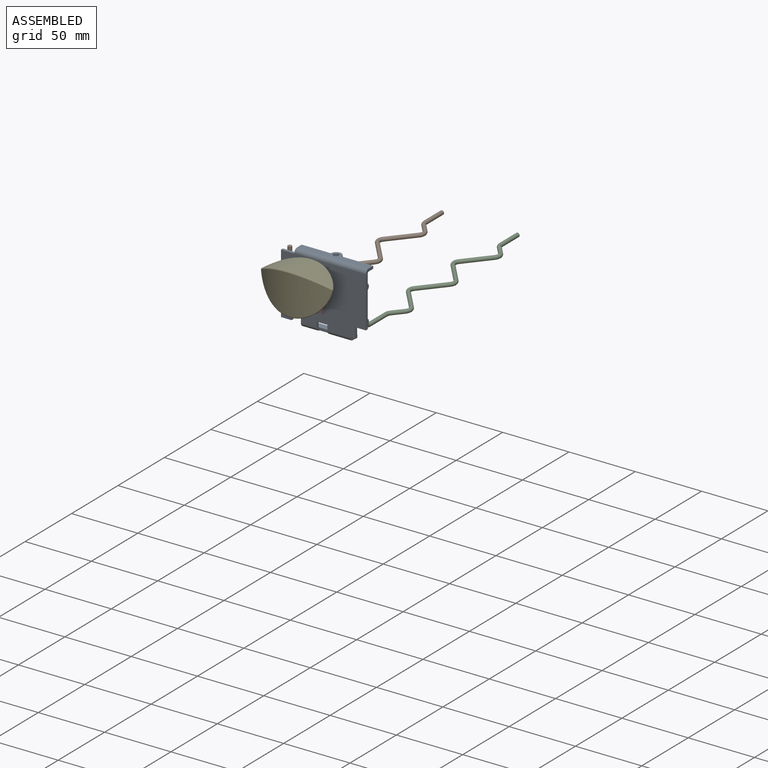
[diagram: assembled view]
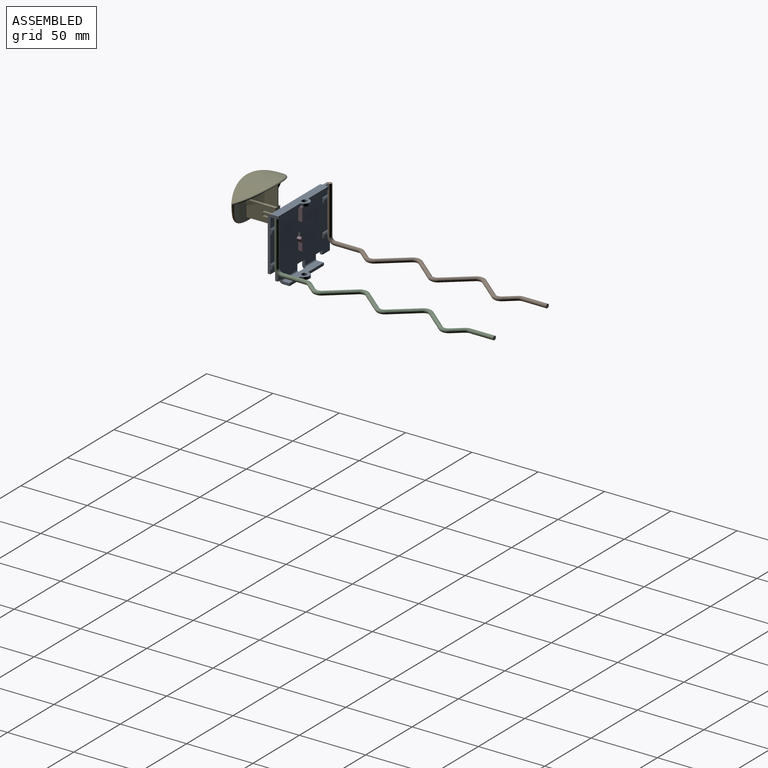
[diagram: assembled view, second angle]
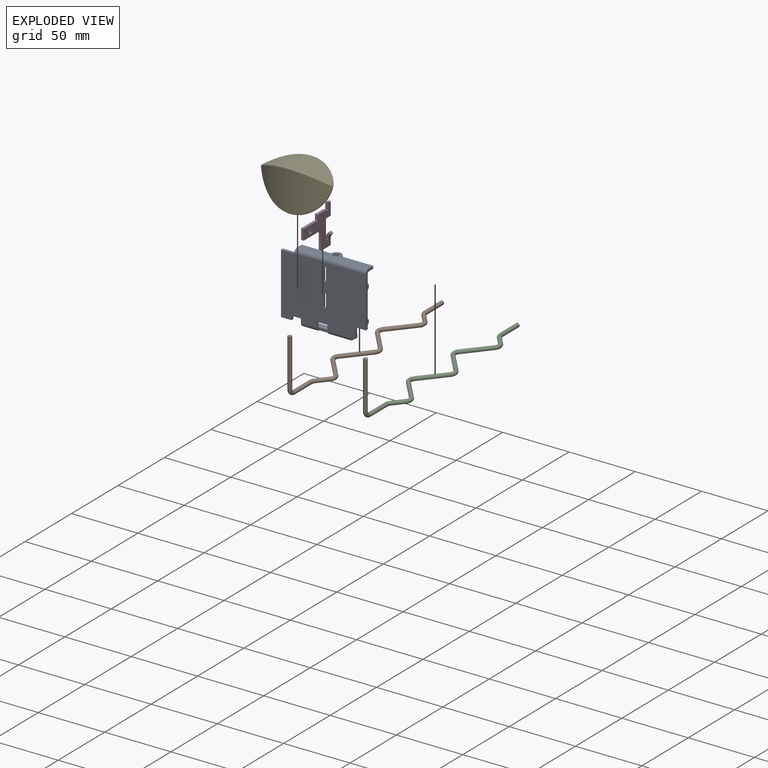
[diagram: exploded view]
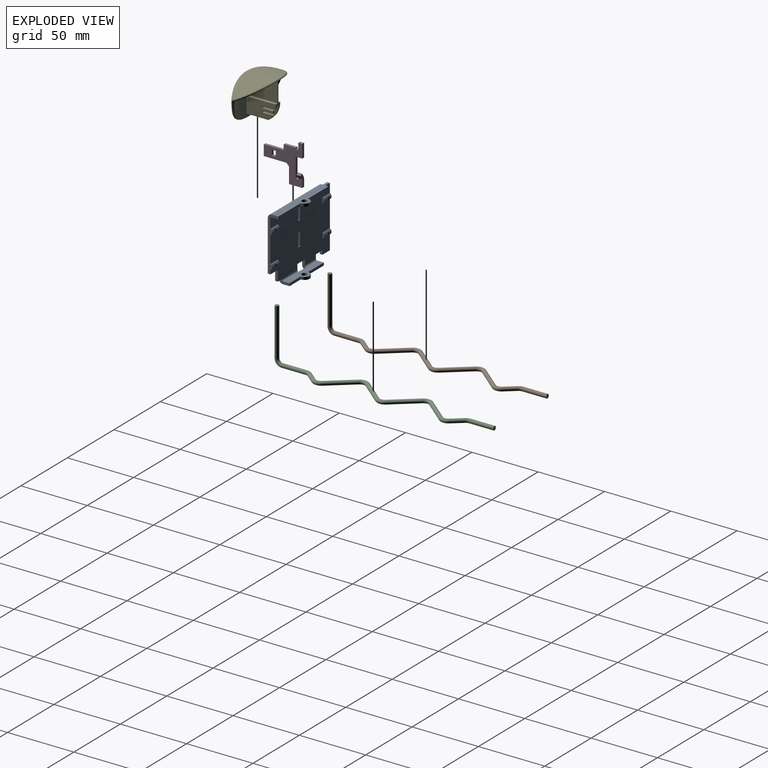
[diagram: exploded view, second angle]
ASSEMBLY  parts=5 mates=4
PART A: 56 faces, bbox 64x12x52 mm
  f0: cylinder r=3mm len=17mm, axis (-1,0,0), area 80.1mm2, adj f5,f7,f24,f29
  f1: cylinder r=1mm len=17mm, axis (-1,0,0), area 26.7mm2, adj f8,f10,f24,f29
  f2: plane 46x3.3mm, normal (-1,0,0), area 99.7mm2, adj f5,f10,f19,f26,f44,f46
  f3: plane 41x8mm, normal (1,0,0), area 100mm2, adj f4,f5,f10,f11,f12,f13,f18,f32
  f4: cylinder r=3mm len=54mm, axis (-1,0,0), area 254.5mm2, adj f3,f5,f13,f17
  f5: plane 64x46mm, normal (0,-1,0), area 2787mm2, adj f0,f2,f3,f4,f6,f19,f25,f26
  f6: cylinder r=3mm len=12mm, axis (-1,0,0), area 56.5mm2, adj f5,f7,f25,f30
  f7: plane 37x9mm, normal (0,0,-1), area 197.6mm2, adj f0,f6,f20,f21,f22,f23,f24,f25
  f8: plane 37x9mm, normal (0,0,1), area 197.6mm2, adj f1,f9,f20,f21,f22,f23,f24,f25
  f9: cylinder r=1mm len=12mm, axis (-1,0,0), area 18.8mm2, adj f8,f10,f25,f30
  f10: plane 64x46mm, normal (0,1,0), area 2654.4mm2, adj f1,f2,f3,f9,f11,f19,f25,f26
  f11: cylinder r=1mm len=54mm, axis (-1,0,0), area 84.8mm2, adj f3,f10,f12,f17
  f12: plane 54x9mm, normal (0,0,-1), area 282.6mm2, adj f3,f11,f14,f15,f16,f17,f18
  f13: plane 54x9mm, normal (0,0,1), area 282.6mm2, adj f3,f4,f14,f15,f16,f17,f18
  f14: cylinder r=2mm len=4mm, axis (0,0,1), area 25.1mm2, adj f12,f13
  f15: cylinder r=4mm len=8mm, axis (0,0,1), area 25.1mm2, adj f12,f13,f16,f18
  f16: plane 22x2mm, normal (0,1,0), area 44mm2, adj f12,f13,f15,f17
  f17: plane 8x3mm, normal (-1,0,0), area 16.3mm2, adj f4,f11,f12,f13,f16,f19
  f18: plane 24x2mm, normal (0,1,0), area 48mm2, adj f3,f12,f13,f15
  f19: plane 10x2mm, normal (0,0,1), area 20mm2, adj f2,f5,f10,f17
  f20: cylinder r=2mm len=4mm, axis (0,0,-1), area 25.1mm2, adj f7,f8
  f21: cylinder r=4mm len=8mm, axis (0,0,-1), area 25.1mm2, adj f7,f8,f22,f23
  f22: plane 12x2mm, normal (0,1,0), area 24mm2, adj f7,f8,f21,f24
  f23: plane 17x2mm, normal (0,1,0), area 34mm2, adj f7,f8,f21,f25
  f24: plane 8x3mm, normal (1,0,0), area 16.3mm2, adj f0,f1,f7,f8,f22,f27
  f25: plane 8x6mm, normal (-1,0,0), area 22.3mm2, adj f5,f6,f7,f8,f9,f10,f23,f34
  f26: plane 8x2mm, normal (0,0,-1), area 16mm2, adj f2,f5,f10,f35
  f27: plane 4x2mm, normal (0,0,-1), area 8mm2, adj f5,f10,f24,f33
  f28: plane 8x2mm, normal (0,-1,0), area 16mm2, adj f7,f8,f29,f30
  f29: plane 7x3mm, normal (-1,0,0), area 14.3mm2, adj f0,f1,f5,f10,f28,f31
  f30: plane 7x3mm, normal (1,0,0), area 14.3mm2, adj f5,f6,f9,f10,f28,f31
  f31: plane 8x2mm, normal (0,0,-1), area 16mm2, adj f5,f10,f29,f30
  f32: plane 8x2mm, normal (0,0,-1), area 16mm2, adj f3,f5,f10,f33
  f33: plane 8x2mm, normal (1,0,0), area 16mm2, adj f5,f10,f27,f32
  f34: plane 7x2mm, normal (0,0,-1), area 14mm2, adj f5,f10,f25,f35
  f35: plane 3x2mm, normal (1,0,0), area 6mm2, adj f5,f10,f26,f34
  f36: plane 10x2mm, normal (-1,0,0), area 20mm2, adj f5,f10,f37,f39
  f37: plane 2x2mm, normal (0,0,1), area 4mm2, adj f5,f10,f36,f38
  f38: plane 10x2mm, normal (1,0,0), area 20mm2, adj f5,f10,f37,f39
  f39: plane 2x2mm, normal (0,0,-1), area 4mm2, adj f5,f10,f36,f38
  f40: plane 10x2mm, normal (-1,0,0), area 20mm2, adj f5,f10,f41,f43
  f41: plane 2x2mm, normal (0,0,1), area 4mm2, adj f5,f10,f40,f42
  f42: plane 10x2mm, normal (1,0,0), area 20mm2, adj f5,f10,f41,f43
  f43: plane 2x2mm, normal (0,0,-1), area 4mm2, adj f5,f10,f40,f42
  f44: cylinder r=2.3mm len=8mm, axis (-1,0,0), area 37.9mm2, adj f2,f10,f45,f53
  f45: plane 4.14x1.3mm, normal (1,0,0), area 3.9mm2, adj f10,f44
  f46: cylinder r=2.3mm len=8mm, axis (-1,0,0), area 37.9mm2, adj f2,f10,f47,f52
  f47: plane 4.14x1.3mm, normal (1,0,0), area 3.9mm2, adj f10,f46
  f48: cylinder r=2.3mm len=8mm, axis (1,0,0), area 37.9mm2, adj f3,f10,f49,f55
  f49: plane 4.14x1.3mm, normal (-1,0,0), area 3.9mm2, adj f10,f48
  f50: cylinder r=2.3mm len=8mm, axis (1,0,0), area 37.9mm2, adj f3,f10,f51,f54
  f51: plane 4.14x1.3mm, normal (-1,0,0), area 3.9mm2, adj f10,f50
  f52: cylinder r=1.5mm len=2.27mm, axis (0,0,-1), area 3.5mm2, adj f46
  f53: cylinder r=1.5mm len=2.27mm, axis (0,0,-1), area 3.5mm2, adj f44
  f54: cylinder r=1.5mm len=2.27mm, axis (0,0,-1), area 3.5mm2, adj f50
  f55: cylinder r=1.5mm len=2.27mm, axis (0,0,-1), area 3.5mm2, adj f48
PART B: 19 faces, bbox 166x21.1x42 mm
  f0: plane 3x3mm, normal (-1,0,0), area 7.1mm2, adj f15
  f1: cylinder r=1.5mm len=18.19mm, axis (-1,0,0), area 171.4mm2, adj f2,f17
  f2: torus R=5mm, axis (0,0,-1), area 32.7mm2, adj f1,f3
  f3: cylinder r=1.5mm len=9.33mm, axis (-0.77,0.64,0), area 90.9mm2, adj f2,f4
  f4: torus R=5mm, axis (0,0,1), area 65.5mm2, adj f3,f5
  f5: cylinder r=1.5mm len=19.52mm, axis (-0.77,-0.64,0), area 215.9mm2, adj f4,f6
  f6: torus R=5mm, axis (0,0,-1), area 65.5mm2, adj f5,f7
  f7: cylinder r=1.5mm len=19.52mm, axis (-0.77,0.64,0), area 215.9mm2, adj f6,f8
  f8: torus R=5mm, axis (0,0,1), area 65.5mm2, adj f7,f9
  f9: cylinder r=1.5mm len=19.52mm, axis (-0.77,-0.64,0), area 215.9mm2, adj f8,f10
  f10: torus R=5mm, axis (0,0,-1), area 65.5mm2, adj f9,f11
  f11: cylinder r=1.5mm len=19.52mm, axis (-0.77,0.64,0), area 215.9mm2, adj f10,f12
  f12: torus R=5mm, axis (0,0,1), area 65.5mm2, adj f11,f13
  f13: cylinder r=1.5mm len=9.33mm, axis (-0.77,-0.64,0), area 90.9mm2, adj f12,f14
  f14: torus R=5mm, axis (0,0,-1), area 32.7mm2, adj f13,f15
  f15: cylinder r=1.5mm len=18.19mm, axis (-1,0,0), area 171.4mm2, adj f0,f14
  f16: plane 3x3mm, normal (0,0,1), area 7.1mm2, adj f18
  f17: torus R=4mm, axis (0,-1,0), area 59.2mm2, adj f1,f18
  f18: cylinder r=1.5mm len=36mm, axis (0,0,1), area 339.3mm2, adj f16,f17
PART C: same geometry as B
PART D: 33 faces, bbox 29x3.9x30 mm
  f0: plane 2x0.28mm, normal (-1,0,0), area 0.5mm2, adj f1,f22,f23,f29
  f1: plane 2x2mm, normal (0,0,1), area 4mm2, adj f0,f2,f22,f23
  f2: plane 15x2mm, normal (1,0,0), area 30mm2, adj f1,f3,f22,f23
  f3: plane 5x2mm, normal (0,0,-1), area 10mm2, adj f2,f4,f22,f23
  f4: plane 10x2mm, normal (1,0,0), area 20mm2, adj f3,f5,f22,f23
  f5: plane 3x2mm, normal (0,0,1), area 6mm2, adj f4,f6,f22,f23
  f6: plane 5x2mm, normal (-1,0,0), area 10mm2, adj f5,f7,f22,f23
  f7: plane 2x2mm, normal (0,0,1), area 4mm2, adj f6,f8,f22,f23
  f8: plane 2x1mm, normal (1,0,0), area 2mm2, adj f7,f9,f22,f23
  f9: plane 9x2mm, normal (0,0,1), area 18mm2, adj f8,f10,f22,f23
  f10: plane 4x2mm, normal (-1,0,0), area 8mm2, adj f9,f11,f22,f23
  f11: plane 15x2mm, normal (0,0,1), area 30mm2, adj f10,f12,f22,f23
  f12: plane 8x2mm, normal (-1,0,0), area 16mm2, adj f11,f13,f22,f23
  f13: plane 17x2mm, normal (0,0,-1), area 34mm2, adj f12,f14,f22,f23
  f14: plane 2x2mm, normal (-0.71,0,-0.71), area 5.7mm2, adj f13,f15,f22,f23
  f15: plane 12x2mm, normal (-1,0,0), area 24mm2, adj f14,f16,f22,f23
  f16: plane 10x2mm, normal (0,0,-1), area 20mm2, adj f15,f21,f22,f23
  f17: plane 4x2mm, normal (-1,0,0), area 8mm2, adj f18,f20,f22,f23
  f18: plane 3x2mm, normal (0,0,1), area 6mm2, adj f17,f19,f22,f23
  f19: plane 4x2mm, normal (1,0,0), area 8mm2, adj f18,f20,f22,f23
  f20: plane 3x2mm, normal (0,0,-1), area 6mm2, adj f17,f19,f22,f23
  f21: plane 5.28x2mm, normal (1,0,0), area 10.5mm2, adj f16,f22,f23,f30
  f22: plane 30x29mm, normal (0,-1,0), area 353.8mm2, adj f0,f1,f2,f3,f4,f5,f6,f7
  f23: plane 30x29mm, normal (0,1,0), area 353.8mm2, adj f0,f1,f2,f3,f4,f5,f6,f7
  f24: plane 3x1.64mm, normal (0,-0.57,0.82), area 6mm2, adj f25,f26,f27,f28
  f25: plane 3.31x3.16mm, normal (-1,0,0), area 5.3mm2, adj f24,f27,f28,f29
  f26: plane 3.31x3.16mm, normal (1,0,0), area 5.3mm2, adj f24,f27,f28,f30
  f27: plane 3x2.17mm, normal (0,-0.82,-0.57), area 7.9mm2, adj f24,f25,f26,f32
  f28: plane 3x2.17mm, normal (0,0.82,0.57), area 7.9mm2, adj f24,f25,f26,f31
  f29: plane 2.47x2.42mm, normal (-1,0,0), area 4mm2, adj f0,f25,f31,f32
  f30: plane 2.47x2.42mm, normal (1,0,0), area 4mm2, adj f21,f26,f31,f32
  f31: cylinder r=4.3mm len=3mm, axis (-1,0,0), area 7.9mm2, adj f23,f28,f29,f30
  f32: cylinder r=2.3mm len=3mm, axis (-1,0,0), area 4.2mm2, adj f22,f27,f29,f30
PART E: 44 faces, bbox 60.3x31.5x32.1 mm
  f0: plane 21.86x8mm, normal (-1,0,0), area 141.8mm2, adj f31,f32,f34,f35,f36,f37,f38,f40
  f1: plane 21.94x12mm, normal (1,0,0), area 224.2mm2, adj f2,f4,f25,f31,f36,f37,f38,f39
  f2: plane 16.58x5mm, normal (0,0,-1), area 82.8mm2, adj f1,f4,f28,f31
  f3: plane 15.01x1.01mm, normal (0,1,0), area 15mm2, adj f15,f26,f29,f30,f31
  f4: cylinder r=51.27mm len=52.83mm, axis (0,0,1), area 1112.6mm2, adj f1,f2,f5,f8,f9,f10,f13,f25
  f5: cylinder r=50.27mm len=25.91mm, axis (0,1,0), area 409.6mm2, adj f4,f6,f9,f13,f16,f26
  f6: cylinder r=31.63mm len=25.74mm, axis (0,0,1), area 5.2mm2, adj f5,f15,f16
  f7: cylinder r=31.63mm len=25.76mm, axis (0,0,1), area 5.2mm2, adj f10,f15,f24
  f8: cylinder r=26.76mm len=11.55mm, axis (0,1,0), area 1.7mm2, adj f4,f10,f13
  f9: cylinder r=26.76mm len=6.91mm, axis (0,1,0), area 0.9mm2, adj f4,f5,f13
  f10: cylinder r=50.27mm len=25.91mm, axis (0,1,0), area 409.5mm2, adj f4,f7,f8,f13,f24,f29
  f11: cylinder r=51.27mm len=53.2mm, axis (0,1,0), area 843.3mm2, adj f14,f15,f18,f22
  f12: cylinder r=51.27mm len=53.2mm, axis (0,0,1), area 1180.8mm2, adj f14,f20
  f13: bspline ~55.49x28.5mm, area 51.3mm2, adj f4,f5,f8,f9,f10,f16,f18,f20
  f14: bspline ~60.33x10.39mm, area 86.4mm2, adj f11,f12,f19,f21
  f15: bspline ~52.54x14.54mm, area 89.4mm2, adj f3,f6,f7,f11,f17,f23,f30
  f16: bspline ~3.77x2.73mm, area 0.2mm2, adj f5,f6,f13,f17
  f17: sphere r=1mm, area 0.1mm2, adj f15,f16,f18
  f18: bspline ~3.68x2.32mm, area 1.9mm2, adj f11,f13,f17,f19
  f19: sphere r=1mm, area 1.1mm2, adj f14,f18,f20
  f20: bspline ~55.18x24.99mm, area 149.6mm2, adj f12,f13,f19,f21
  f21: sphere r=1mm, area 1.1mm2, adj f14,f20,f22
  f22: bspline ~4.59x3mm, area 1.8mm2, adj f11,f13,f21,f23
  f23: sphere r=1mm, area 0.1mm2, adj f15,f22,f24
  f24: bspline ~1.2x0.86mm, area 0.2mm2, adj f7,f10,f13,f23
  f25: plane 22x2mm, normal (0,0,1), area 43.9mm2, adj f1,f4,f29,f31
  f26: plane 22x15mm, normal (-1,0,0), area 329.9mm2, adj f3,f4,f5,f27
  f27: plane 22x2mm, normal (0,0,1), area 43.9mm2, adj f4,f26,f28,f31
  f28: plane 21.94x12mm, normal (-1,0,0), area 243.3mm2, adj f2,f4,f27,f31
  f29: plane 22x15mm, normal (1,0,0), area 329.9mm2, adj f3,f4,f10,f25,f30
  f30: extruded ~0.5x0mm, area 0mm2, adj f3,f15,f29
  f31: cylinder r=16mm len=12mm, axis (1,0,0), area 43.7mm2, adj f0,f1,f2,f3,f25,f27,f28,f33
  f32: cylinder r=51.27mm len=8mm, axis (0,0,1), area 16mm2, adj f0,f33,f34,f35
  f33: plane 21.86x8mm, normal (1,0,0), area 164.9mm2, adj f31,f32,f34,f35
  f34: plane 18.49x2mm, normal (0,0,1), area 37mm2, adj f0,f31,f32,f33
  f35: plane 21.87x2mm, normal (0,0,-1), area 43.7mm2, adj f0,f31,f32,f33
  f36: plane 9.49x1.5mm, normal (0,0,-1), area 14.2mm2, adj f0,f1,f31,f37
  f37: plane 1.5x1mm, normal (0,1,0), area 1.5mm2, adj f0,f1,f36,f38
  f38: plane 8x2mm, normal (0,0,1), area 12.7mm2, adj f0,f1,f37,f39,f43
  f39: plane 2x1.5mm, normal (0,1,0), area 3mm2, adj f1,f38,f40,f43
  f40: plane 8x2mm, normal (0,0,-1), area 12.7mm2, adj f0,f1,f39,f41,f43
  f41: plane 1.5x1mm, normal (0,1,0), area 1.5mm2, adj f0,f1,f40,f42
  f42: plane 7.86x1.5mm, normal (0,0,1), area 11.8mm2, adj f0,f1,f31,f41
  f43: cylinder r=1.25mm len=2mm, axis (0,0,1), area 4.6mm2, adj f0,f38,f39,f40
PLACE A t=(-98.8,-83.17,-84.91)mm fixed
PLACE B rot(axis=(0,0,-1),90deg) t=(-95.3,-74.67,-74.06)mm
PLACE C rot(axis=(0,0,-1),90deg) t=(-38.3,-74.67,-74.06)mm
PLACE D rot(axis=(0,0,1),90deg) t=(-66.8,-78.17,-68.91)mm
PLACE E t=(-65.8,-97.17,-35.91)mm
MATE fastened A.f52 <-> B.f18  axis (0,0,-1) through (-95.3,-78.67,-70.06)mm
MATE fastened A.f54 <-> C.f18  axis (0,0,-1) through (-38.3,-78.67,-70.06)mm
MATE fastened D.f3 <-> A.f37  axis (0,0,1) through (-66.8,-83.17,-48.91)mm
MATE fastened E.f38 <-> D.f20  axis (0,0,1) through (-64.8,-101.17,-48.91)mm
